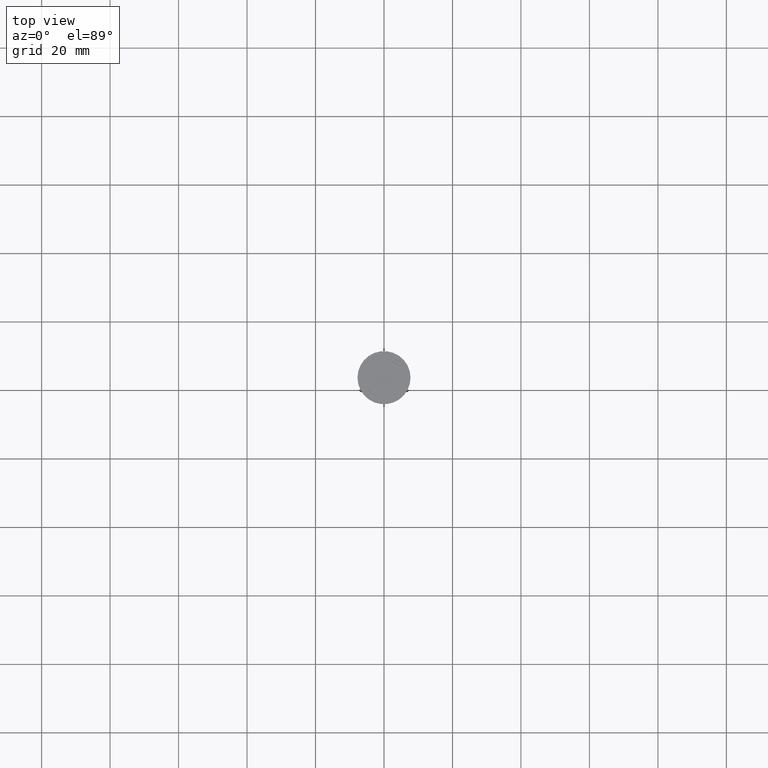
[diagram: clean part render]
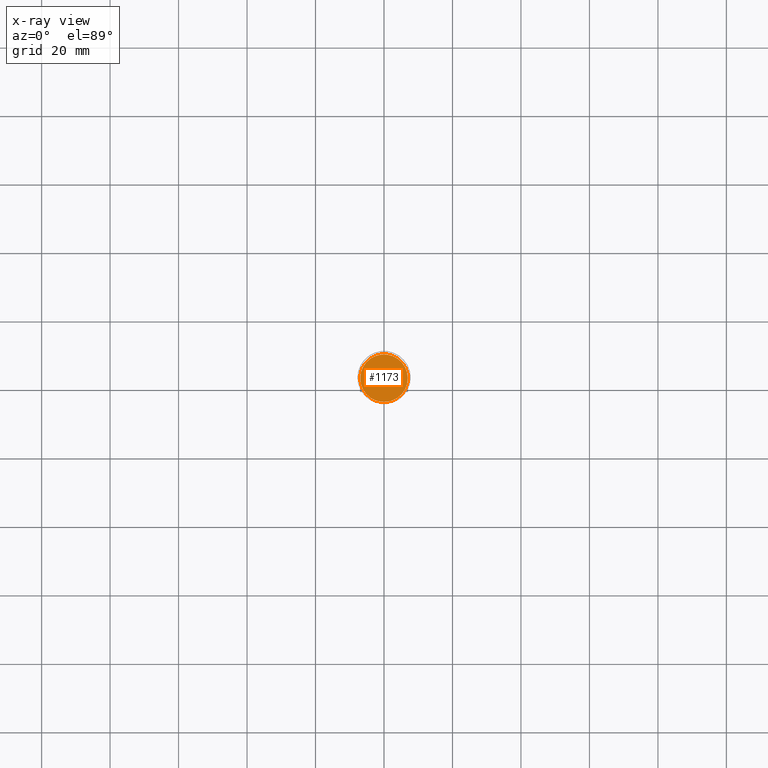
[diagram: x-ray — body ghosted, one internal face saturated and labeled with its STEP entity id]
A machine part, top view, then the same camera in x-ray: the body is ghosted and one INTERNAL B-rep face — a face not visible from any outside direction — is saturated and labeled: STEP entity #1173.
In plain terms, the highlighted planar face has unit normal (0, 0, -1).
Its self-contained STEP definition (entity closure, byte-faithful):
#98 = ORIENTED_EDGE ( 'NONE', *, *, #875, .T. ) ;
#204 = CARTESIAN_POINT ( 'NONE',  ( 0.000000000000000000, 0.000000000000000000, -10.50000000000000178 ) ) ;
#284 = DIRECTION ( 'NONE',  ( -1.000000000000000000, 0.000000000000000000, -0.000000000000000000 ) ) ;
#334 = DIRECTION ( 'NONE',  ( -0.000000000000000000, -0.000000000000000000, 1.000000000000000000 ) ) ;
#428 = ORIENTED_EDGE ( 'NONE', *, *, #1309, .T. ) ;
#497 = AXIS2_PLACEMENT_3D ( 'NONE', #1616, #1442, #1822 ) ;
#661 = FACE_OUTER_BOUND ( 'NONE', #1744, .T. ) ;
#875 = EDGE_CURVE ( 'NONE', #1524, #2326, #1728, .T. ) ;
#988 = AXIS2_PLACEMENT_3D ( 'NONE', #204, #334, #2168 ) ;
#1173 = ADVANCED_FACE ( 'NONE', ( #661 ), #2115, .F. ) ;
#1263 = CARTESIAN_POINT ( 'NONE',  ( -6.950000000000001066, 0.000000000000000000, -10.50000000000000178 ) ) ;
#1309 = EDGE_CURVE ( 'NONE', #2326, #1524, #1812, .T. ) ;
#1399 = CARTESIAN_POINT ( 'NONE',  ( 0.000000000000000000, 0.000000000000000000, -10.50000000000000178 ) ) ;
#1442 = DIRECTION ( 'NONE',  ( -0.000000000000000000, -0.000000000000000000, 1.000000000000000000 ) ) ;
#1524 = VERTEX_POINT ( 'NONE', #1263 ) ;
#1616 = CARTESIAN_POINT ( 'NONE',  ( 0.000000000000000000, 0.000000000000000000, -10.50000000000000178 ) ) ;
#1728 = CIRCLE ( 'NONE', #988, 6.950000000000001066 ) ;
#1731 = DIRECTION ( 'NONE',  ( 0.000000000000000000, 0.000000000000000000, -1.000000000000000000 ) ) ;
#1744 = EDGE_LOOP ( 'NONE', ( #98, #428 ) ) ;
#1812 = CIRCLE ( 'NONE', #497, 6.950000000000001066 ) ;
#1822 = DIRECTION ( 'NONE',  ( -1.000000000000000000, 0.000000000000000000, 0.000000000000000000 ) ) ;
#1894 = CARTESIAN_POINT ( 'NONE',  ( 6.950000000000001066, 8.694992273946209718E-16, -10.50000000000000178 ) ) ;
#2077 = AXIS2_PLACEMENT_3D ( 'NONE', #1399, #1731, #284 ) ;
#2115 = PLANE ( 'NONE',  #2077 ) ;
#2168 = DIRECTION ( 'NONE',  ( -1.000000000000000000, 0.000000000000000000, 0.000000000000000000 ) ) ;
#2326 = VERTEX_POINT ( 'NONE', #1894 ) ;